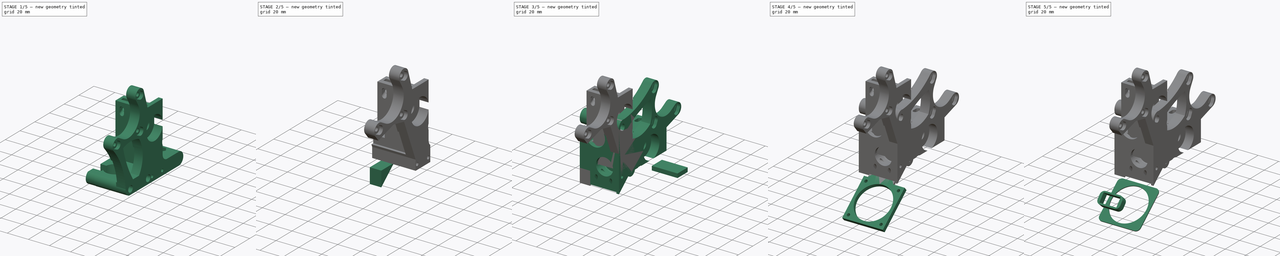
[diagram: build sequence overview — one tinted view per stage of 5, left to right]
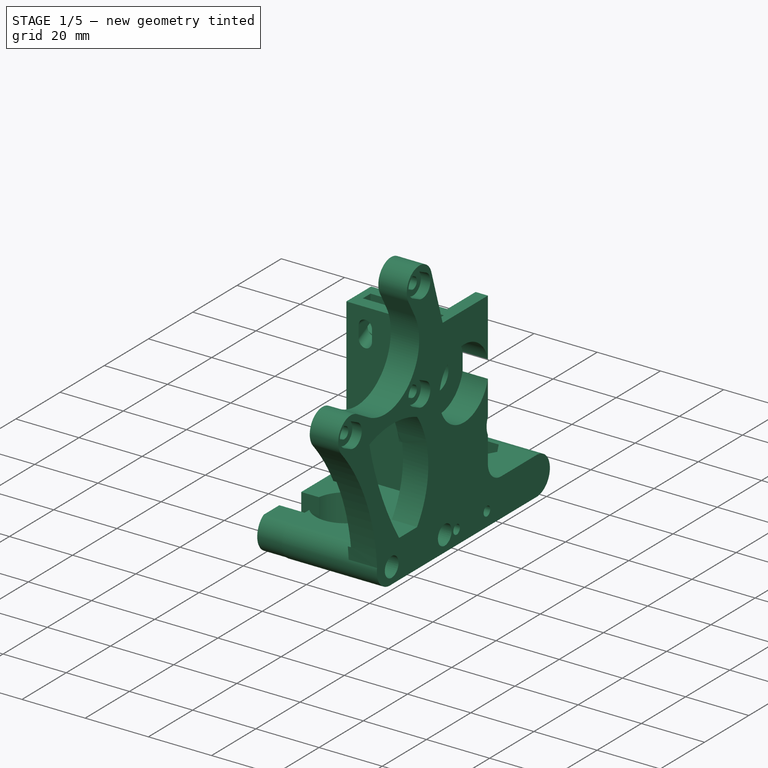
[diagram: stage 1 of 5 — iso view after this stage's code; geometry added in this stage tinted green]
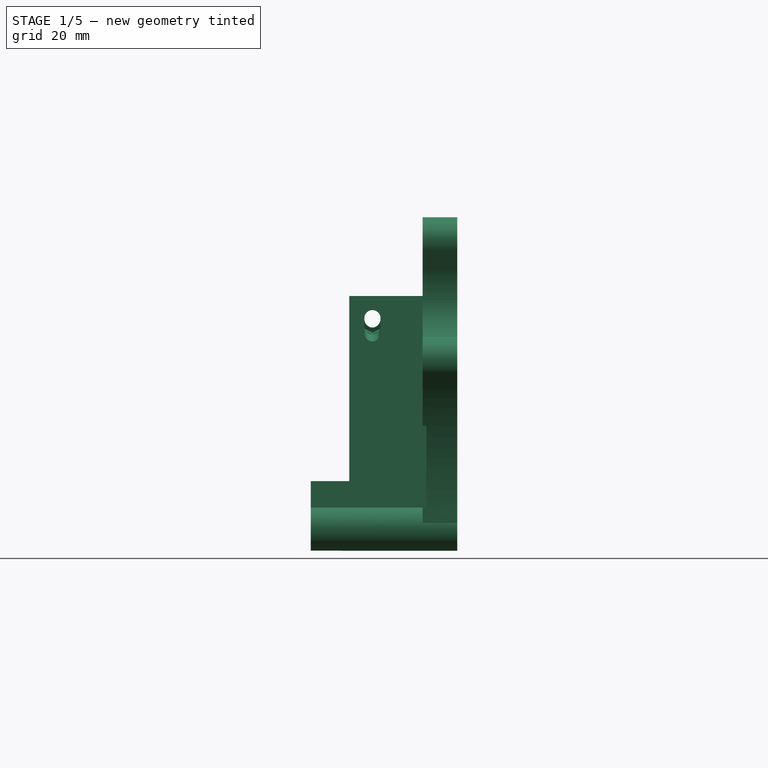
[diagram: stage 1 of 5 — front view after this stage's code; geometry added in this stage tinted green]
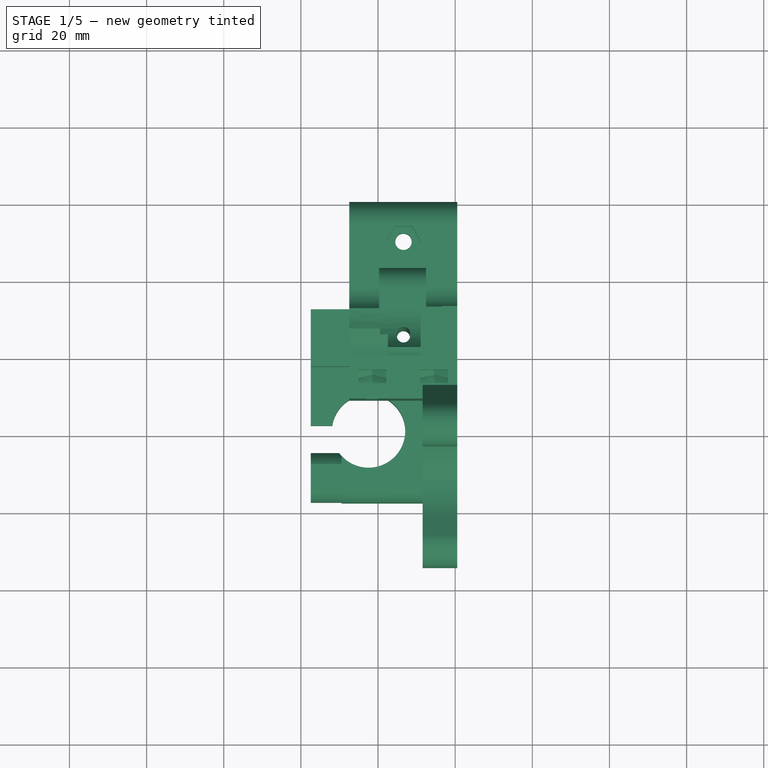
[diagram: stage 1 of 5 — top view after this stage's code; geometry added in this stage tinted green]
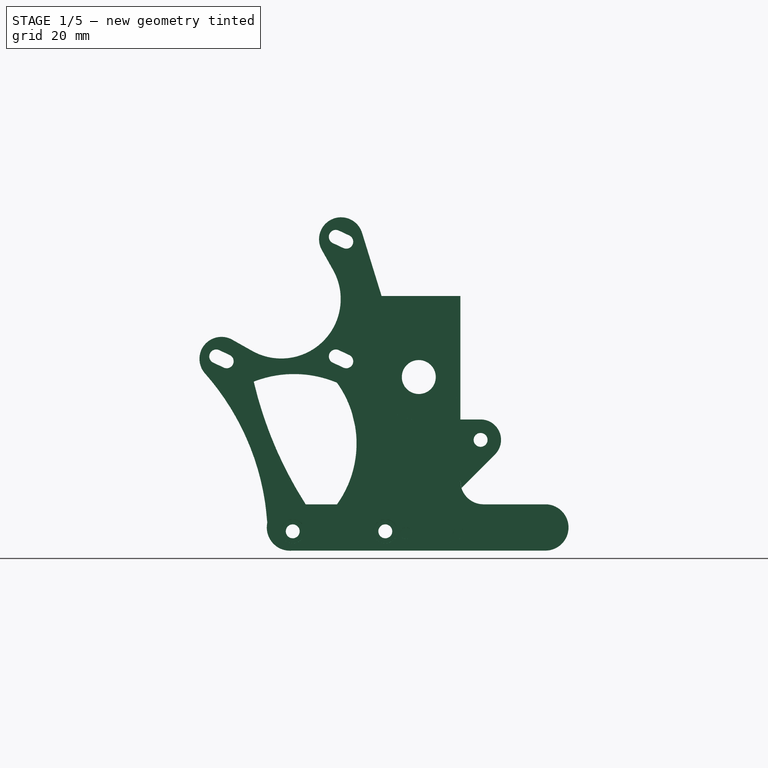
[diagram: stage 1 of 5 — right view after this stage's code; geometry added in this stage tinted green]
FCSTD DOCUMENT  (FreeCAD 0.16R6398 (Git))
Label: wade-autolevel
License: All rights reserved
LicenseURL: http://en.wikipedia.org/wiki/All_rights_reserved
objects: Sketcher::SketchObject×22, PartDesign::Pocket×14, Part::Feature×8, PartDesign::Pad×6, Part::FeaturePython×6, App::DocumentObjectGroup×3, Part::Extrusion×2, Part::MultiFuse×2, Part::Box×2, PartDesign::Fillet×2, Part::Loft×2, PartDesign::Chamfer×1, Part::Compound×1
note: 88 computed .brp shape members not serialized (recipe doc carries the construction recipe); baked Part::Feature solids carry a one-line shape summary decoded from their .brp

FEATURE [Part::Feature] Compound  label="SondaCapacitiva001"
  Placement = pos=(-14.4515,12.7157,12.7724) rot=(0,0,1;0rad)
  shape: bbox 18 x 101 x 18 mm, 13 faces, 5 solids (baked)
FEATURE [Part::Feature] Compound001  label="E3DV007"
  Placement = pos=(13,-14,-2) rot=(-1,0,0;1.5708rad)
  shape: bbox 26.67 x 61.47 x 22.35 mm, 166 faces, 21 solids (baked)
FEATURE [Part::Feature] Compound002  label="Jhead-Mk006"
  Placement = pos=(8.6989,-50.612,-4.3798) rot=(-1,0,0;1.5708rad)
  shape: bbox 24.81 x 55.95 x 19.62 mm, 36 faces, 2 solids (baked)
FEATURE [App::DocumentObjectGroup] Grupo
FEATURE [Part::Feature] Part__Feature  label="Open CASCADE STEP translator 6.7 1"
  shape: bbox 69.53 x 97.45 x 86.95 mm, 2485 faces (baked)
FEATURE [Sketcher::SketchObject] Sketch001
  Placement = pos=(20.5485,0,0) rot=(0.57735,0.57735,0.57735;2.0944rad)
  Support = -> Part__Feature [Face28]
  sketch-geometry (2):
    g0: Circle CenterX=-31.5162 CenterY=-0.439349 CenterZ=0 NormalX=0 NormalY=0 NormalZ=1 Radius=6.01035
    g1: Circle CenterX=-30.8257 CenterY=-1.43756 CenterZ=0 NormalX=0 NormalY=0 NormalZ=1 Radius=3.25903
FEATURE [PartDesign::Pad] Pad
  Length = 30
  Length2 = 100
  Reversed = true
  Sketch = -> Sketch001
  Type = 0
FEATURE [Sketcher::SketchObject] Sketch
  Placement = pos=(-17.4515,0,0) rot=(0.57735,-0.57735,-0.57735;2.0944rad)
  Support = -> Pad [Face424]
  sketch-geometry (4):
    g0: LineSegment StartX=2.16445 StartY=25.9113 StartZ=0 EndX=56.2667 EndY=25.9113 EndZ=0
    g1: LineSegment StartX=56.2667 StartY=25.9113 StartZ=0 EndX=56.2667 EndY=4.71573 EndZ=0
    g2: LineSegment StartX=56.2667 StartY=4.71573 StartZ=0 EndX=2.16445 EndY=4.71573 EndZ=0
    g3: LineSegment StartX=2.16445 StartY=4.71573 StartZ=0 EndX=2.16445 EndY=25.9113 EndZ=0
  constraints (8):
    c: Coincident(g0,g1)
    c: Coincident(g1,g2)
    c: Coincident(g2,g3)
    c: Coincident(g3,g0)
    c: Horizontal(g0)
    c: Horizontal(g2)
    c: Vertical(g1)
    c: Vertical(g3)
FEATURE [PartDesign::Pocket] Pocket
  Length = 30
  Sketch = -> Sketch
  Type = 0
FEATURE [Sketcher::SketchObject] Sketch002
  Placement = pos=(0,0,4.71573) rot=(0,0,1;0rad)
  Support = -> Pocket [Face350]
  sketch-geometry (1):
    g0: Circle CenterX=6.15418 CenterY=-20.3683 CenterZ=0 NormalX=0 NormalY=0 NormalZ=1 Radius=6.10393
FEATURE [PartDesign::Pad] Pad001
  Length = 11.1
  Length2 = 100
  Reversed = true
  Sketch = -> Sketch002
  Type = 0
FEATURE [Sketcher::SketchObject] Sketch003
  ExternalGeometry = -> [Pad001]
  Placement = pos=(0,0,4.71573) rot=(0,0,1;0rad)
  Support = -> Pad001 [Face430]
  sketch-geometry (7):
    g0: LineSegment [constr] StartX=12.5485 StartY=-2.16445 StartZ=0 EndX=-17.4515 EndY=-2.16445 EndZ=0
    g1: LineSegment [constr] StartX=-17.4515 StartY=-2.16445 StartZ=0 EndX=-17.4515 EndY=-34.4003 EndZ=0
    g2: LineSegment [constr] StartX=-17.4515 StartY=-34.4003 StartZ=0 EndX=12.5485 EndY=-34.4003 EndZ=0
    g3: LineSegment [constr] StartX=12.5485 StartY=-34.4003 StartZ=0 EndX=12.5485 EndY=-2.16445 EndZ=0
    g4: LineSegment [constr] StartX=-2.4515 StartY=-18.7724 StartZ=0 EndX=-17.4515 EndY=-18.7724 EndZ=0
    g5: LineSegment [constr] StartX=-2.4515 StartY=-18.7724 StartZ=0 EndX=12.5485 EndY=-18.7724 EndZ=0
    g6: Circle CenterX=-2.4515 CenterY=-18.7724 CenterZ=0 NormalX=0 NormalY=0 NormalZ=1 Radius=9.5
  constraints (18):
    c: Coincident(g0,g1)
    c: Coincident(g1,g2)
    c: Coincident(g2,g3)
    c: Coincident(g3,g0)
    c: Horizontal(g0)
    c: Horizontal(g2)
    c: Vertical(g1)
    c: Vertical(g3)
    c: Coincident(g0,g-3)
    c: Coincident(g1,g-4)
    c: PointOnObject(g4,g1)
    c: Horizontal(g4)
    c: PointOnObject(g5,g-3)
    c: Horizontal(g5)
    c: Equal(g4,g5)
    c: Coincident(g4,g5)
    c: Coincident(g6,g4)
    c: Radius(g6) = 9.5
FEATURE [PartDesign::Pocket] Pocket001
  Length = 5
  Sketch = -> Sketch003
  Type = 1
FEATURE [Sketcher::SketchObject] Sketch021
  Placement = pos=(20.5485,0,0) rot=(0.57735,0.57735,0.57735;2.0944rad)
  Support = -> Pad001 [Face126]
  sketch-geometry (6):
    g0: LineSegment StartX=-3.53989 StartY=-18 StartZ=0 EndX=-3.53989 EndY=2.39728 EndZ=0
    g1: LineSegment StartX=-3.53989 StartY=2.39728 StartZ=0 EndX=-18 EndY=37.9326 EndZ=0
    g2: LineSegment StartX=-18 StartY=37.9326 StartZ=0 EndX=-30.9907 EndY=40.6313 EndZ=0
    g3: LineSegment StartX=-30.9907 StartY=40.6313 StartZ=0 EndX=-54 EndY=34.0573 EndZ=0
    g4: LineSegment StartX=-54 StartY=34.0573 StartZ=0 EndX=-54 EndY=-15.0933 EndZ=0
    g5: LineSegment StartX=-54 StartY=-15.0933 StartZ=0 EndX=-3.53989 EndY=-18 EndZ=0
  constraints (8):
    c: Vertical(g0)
    c: Coincident(g0,g1)
    c: Coincident(g1,g2)
    c: Coincident(g2,g3)
    c: Coincident(g3,g4)
    c: Vertical(g4)
    c: Coincident(g4,g5)
    c: Coincident(g5,g0)
FEATURE [PartDesign::Pocket] Pocket012
  Length = 5
  Sketch = -> Sketch021
  Type = 1
FEATURE [Sketcher::SketchObject] Sketch022
  Placement = pos=(20.5485,0,0) rot=(0.57735,0.57735,0.57735;2.0944rad)
  Support = -> Pocket012 [Face126]
  sketch-geometry (4):
    g0: LineSegment StartX=14.7839 StartY=-9 StartZ=0 EndX=54 EndY=-9 EndZ=0
    g1: LineSegment StartX=54 StartY=-9 StartZ=0 EndX=54 EndY=9 EndZ=0
    g2: LineSegment StartX=54 StartY=9 StartZ=0 EndX=14.7839 EndY=9 EndZ=0
    g3: LineSegment StartX=14.7839 StartY=9 StartZ=0 EndX=14.7839 EndY=-9 EndZ=0
  constraints (8):
    c: Coincident(g0,g1)
    c: Coincident(g1,g2)
    c: Coincident(g2,g3)
    c: Coincident(g3,g0)
    c: Horizontal(g0)
    c: Horizontal(g2)
    c: Vertical(g1)
    c: Vertical(g3)
FEATURE [PartDesign::Pocket] Pocket013
  Length = 5
  Sketch = -> Sketch022
  Type = 1
FEATURE [App::DocumentObjectGroup] Grupo001
  Group = -> [Pad,Pocket,Pad001,Pocket001,Part__Feature,Pocket012,Pocket013]
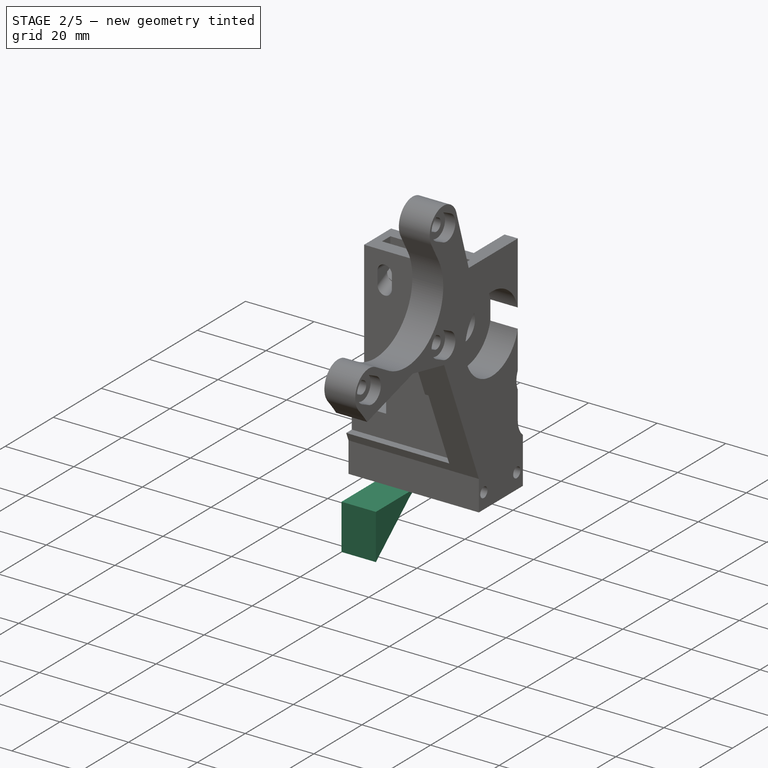
[diagram: stage 2 of 5 — iso view after this stage's code; geometry added in this stage tinted green]
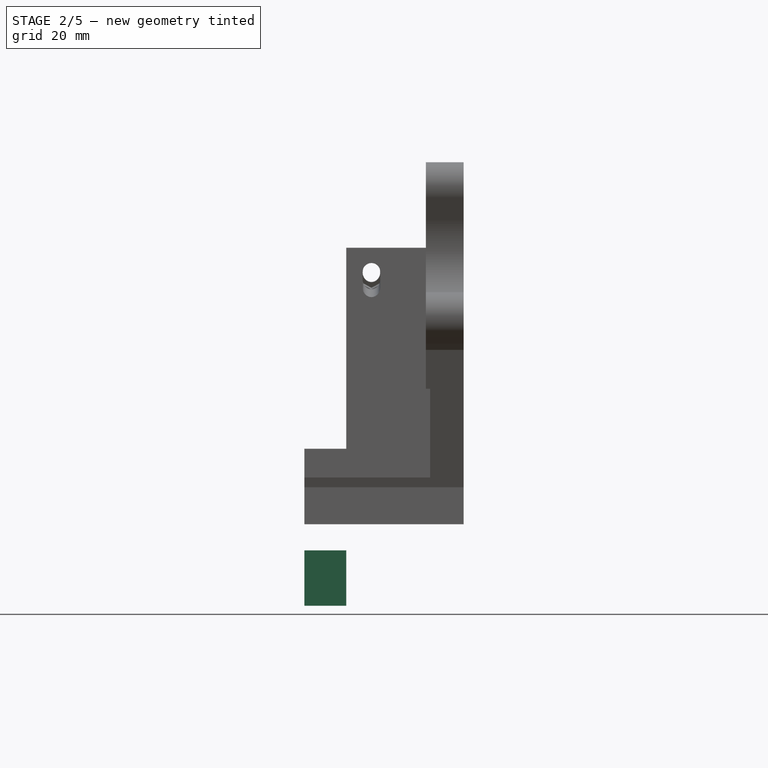
[diagram: stage 2 of 5 — front view after this stage's code; geometry added in this stage tinted green]
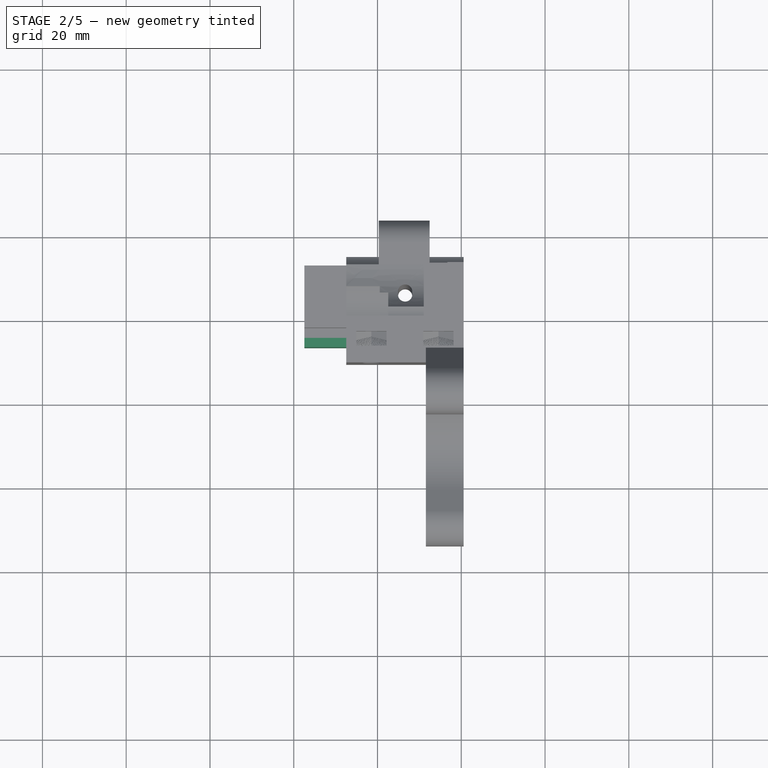
[diagram: stage 2 of 5 — top view after this stage's code; geometry added in this stage tinted green]
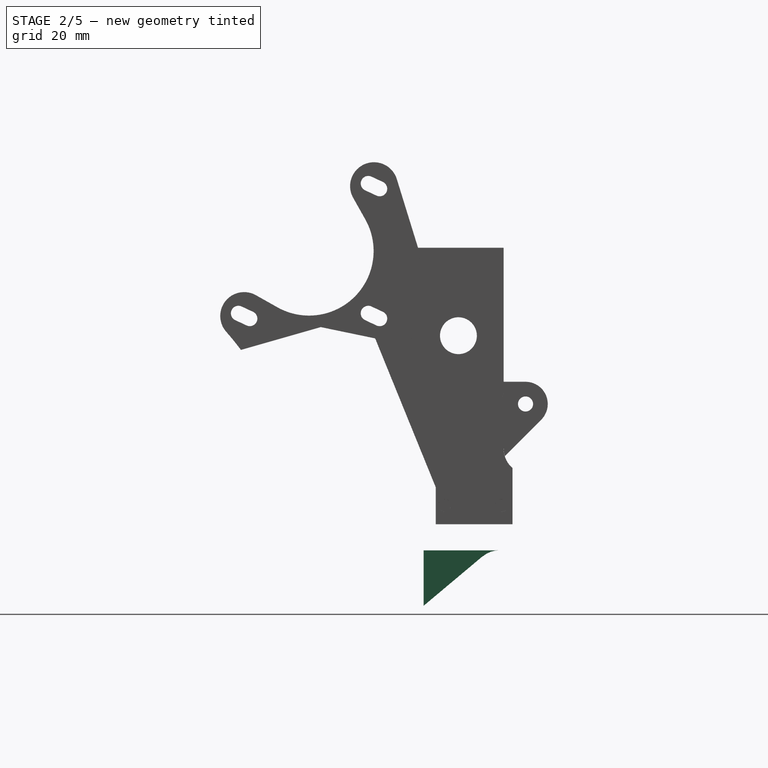
[diagram: stage 2 of 5 — right view after this stage's code; geometry added in this stage tinted green]
FEATURE [Part::FeaturePython] Clone  label="Clone of Pocket001"  # Draft clone (typed FeaturePython)
  Objects = -> [Pocket001]
  Placement = pos=(0,0,0) rot=(-1,0,0;1.5708rad)
  Scale = (1,1,1)
FEATURE [Sketcher::SketchObject] Sketch004
  Placement = pos=(0,3.57569,0) rot=(1,0,0;1.5708rad)
  Support = -> Clone [Face428]
  sketch-geometry (1):
    g0: Circle CenterX=6.60961 CenterY=-5.38482 CenterZ=0 NormalX=0 NormalY=0 NormalZ=1 Radius=2
  constraints (1):
    c: Radius(g0) = 2
FEATURE [PartDesign::Pocket] Pocket002
  Length = 5
  Placement = pos=(0,0,0) rot=(-1,0,0;1.5708rad)
  Sketch = -> Sketch004
  Type = 1
FEATURE [Sketcher::SketchObject] Sketch005
  Placement = pos=(11.0485,0,0) rot=(0,-1,0;1.5708rad)
  Support = -> Pocket002 [Face145]
  sketch-geometry (3):
    g0: LineSegment StartX=-1.74397 StartY=27.2507 StartZ=0 EndX=-12.4988 EndY=38.0055 EndZ=0
    g1: LineSegment StartX=-12.4988 StartY=38.0055 StartZ=0 EndX=-12.4988 EndY=27.2507 EndZ=0
    g2: LineSegment StartX=-12.4988 StartY=27.2507 StartZ=0 EndX=-1.74397 EndY=27.2507 EndZ=0
  constraints (6):
    c: Coincident(g0,g1)
    c: Vertical(g1)
    c: Coincident(g1,g2)
    c: Coincident(g2,g0)
    c: Horizontal(g2)
    c: Angle(g1,g0) = 0.785398
FEATURE [PartDesign::Pad] Pad002
  Length = 10.5
  Length2 = 100
  Placement = pos=(0,0,0) rot=(-1,0,0;1.5708rad)
  Sketch = -> Sketch005
  Type = 0
FEATURE [Sketcher::SketchObject] Sketch006
  ExternalGeometry = -> [Pad002]
  Placement = pos=(0,3.57569,0) rot=(1,0,0;1.5708rad)
  Support = -> Pad002 [Face419]
  sketch-geometry (1):
    g0: Circle CenterX=6.60961 CenterY=-5.38482 CenterZ=0 NormalX=0 NormalY=0 NormalZ=1 Radius=2.2
  constraints (2):
    c: Coincident(g0,g-3)
    c: Radius(g0) = 2.2
FEATURE [PartDesign::Pocket] Pocket003
  Length = 5
  Placement = pos=(0,0,0) rot=(-1,0,0;1.5708rad)
  Sketch = -> Sketch006
  Type = 1
FEATURE [Sketcher::SketchObject] Sketch007
  Placement = pos=(20.5485,0,0) rot=(0,1,0;1.5708rad)
  Support = -> Pocket003 [Face126]
  sketch-geometry (5):
    g0: LineSegment StartX=13.9692 StartY=7.78979 StartZ=0 EndX=36.2501 EndY=-18.7636 EndZ=0
    g1: LineSegment StartX=36.2501 StartY=-18.7636 StartZ=0 EndX=50.9931 EndY=-18.7636 EndZ=0
    g2: LineSegment StartX=50.9931 StartY=-18.7636 StartZ=0 EndX=50.9931 EndY=7.78979 EndZ=0
    g3: LineSegment StartX=50.9931 StartY=7.78979 StartZ=0 EndX=13.9692 EndY=7.78979 EndZ=0
    g4: LineSegment [constr] StartX=13.9692 StartY=7.78979 StartZ=0 EndX=13.9692 EndY=16.7418 EndZ=0
  constraints (10):
    c: Coincident(g0,g1)
    c: Horizontal(g1)
    c: Coincident(g1,g2)
    c: Vertical(g2)
    c: Coincident(g2,g3)
    c: Coincident(g3,g0)
    c: Angle(g0,g3) = 0.872665
    c: Horizontal(g3)
    c: Vertical(g4)
    c: Coincident(g0,g4)
FEATURE [PartDesign::Pocket] Pocket004
  Length = 5
  Placement = pos=(0,0,0) rot=(-1,0,0;1.5708rad)
  Sketch = -> Sketch007
  Type = 1
FEATURE [Part::Extrusion] Extrude_Facebinder001  label="Facebinder_Extrude001"
  Base = -> Facebinder
  Dir = (-10,0,0)
  Solid = true
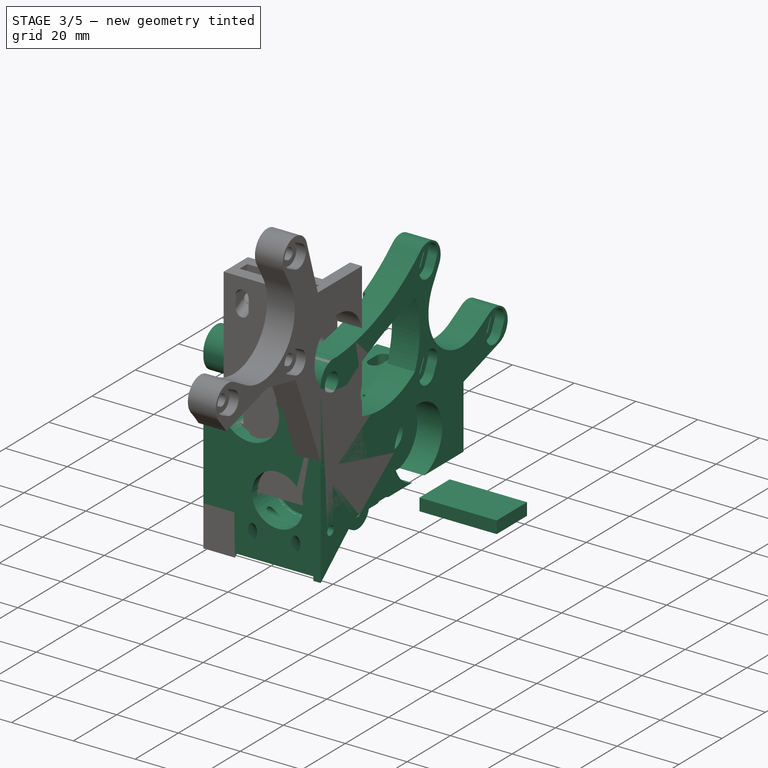
[diagram: stage 3 of 5 — iso view after this stage's code; geometry added in this stage tinted green]
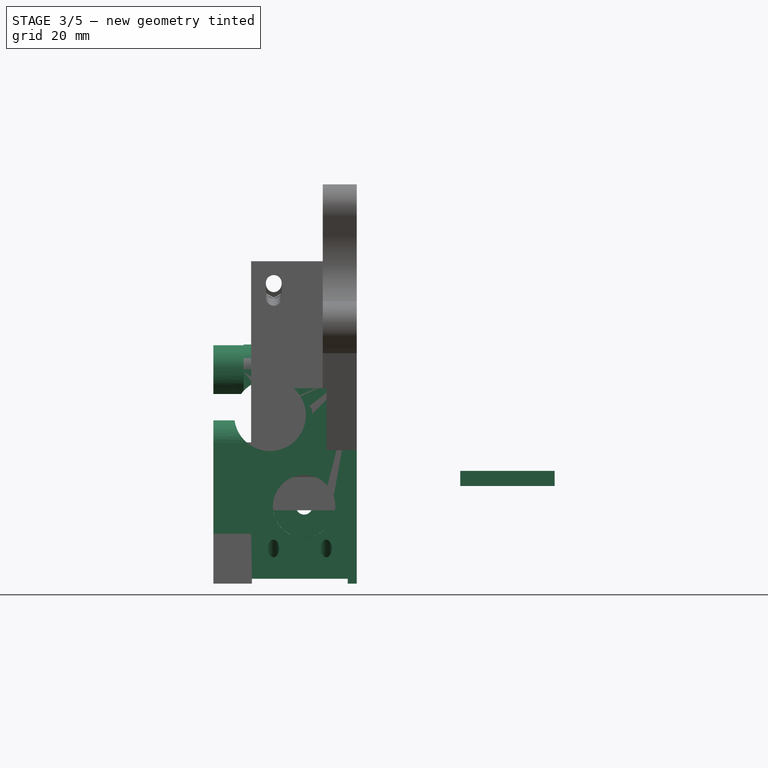
[diagram: stage 3 of 5 — front view after this stage's code; geometry added in this stage tinted green]
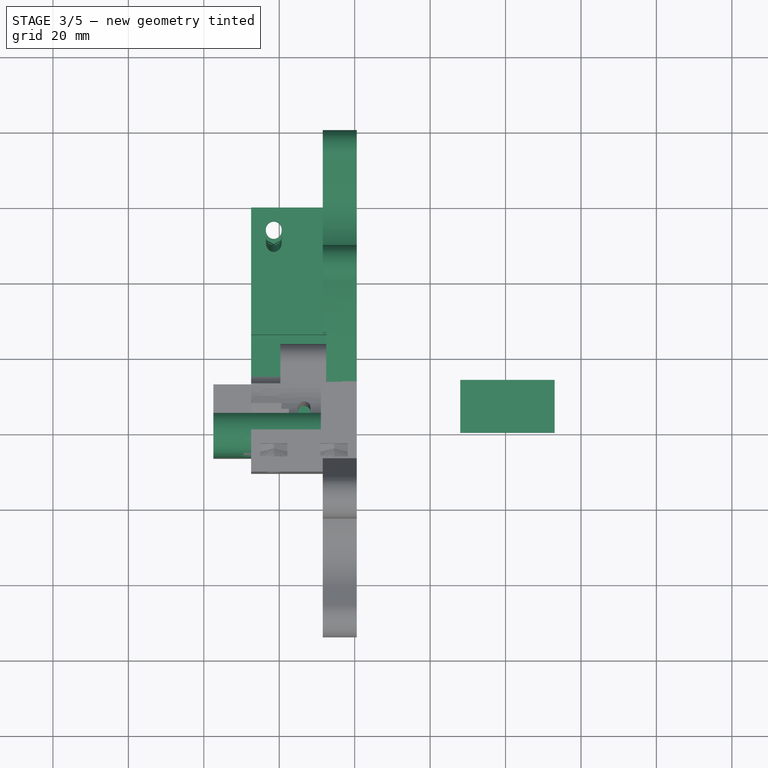
[diagram: stage 3 of 5 — top view after this stage's code; geometry added in this stage tinted green]
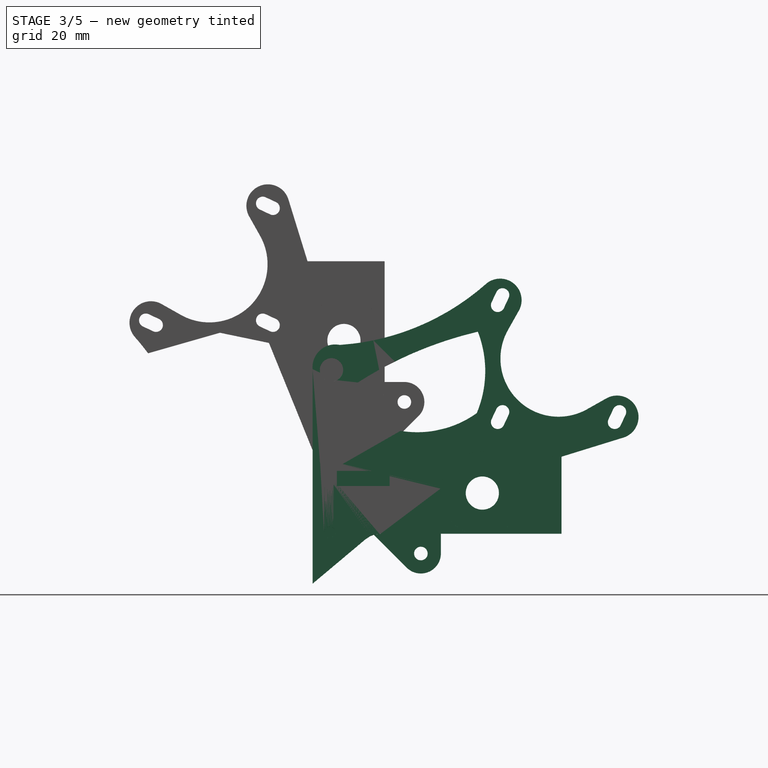
[diagram: stage 3 of 5 — right view after this stage's code; geometry added in this stage tinted green]
FEATURE [Part::Feature] Pad003  label="Ventilador40mm"
  Placement = pos=(-51.0719,-33.2211,-65.3516) rot=(1,0,0;0.698132rad)
  shape: bbox 40 x 37.07 x 33.37 mm, 15 faces (baked)
FEATURE [Part::FeaturePython] Facebinder  # WARN: FeaturePython — macro-defined, semantics opaque (R4)
  Faces = -> [Pocket004]
  Placement = pos=(0,0,0) rot=(-1,0,0;1.5708rad)
FEATURE [Part::Extrusion] Extrude_Facebinder  label="Facebinder_Extrude"
  Base = -> Facebinder
  Dir = (-10,0,0)
  Solid = true
FEATURE [Part::MultiFuse] Fusion
  Shapes = -> [Extrude_Facebinder001,Pocket004]
FEATURE [Sketcher::SketchObject] Sketch008
  ExternalGeometry = -> [Fusion]
  Placement = pos=(0,10.097,-12.0332) rot=(1,0,0;3.83972rad)
  Support = -> Fusion [Face416]
  sketch-geometry (5):
    g0: LineSegment StartX=-7.24644 StartY=21.5672 StartZ=0 EndX=18.1536 EndY=21.5672 EndZ=0
    g1: LineSegment StartX=18.1536 StartY=21.5672 StartZ=0 EndX=18.1536 EndY=9.16724 EndZ=0
    g2: LineSegment StartX=18.1536 StartY=9.16724 StartZ=0 EndX=-7.24644 EndY=9.16724 EndZ=0
    g3: LineSegment StartX=-7.24644 StartY=9.16724 StartZ=0 EndX=-7.24644 EndY=21.5672 EndZ=0
    g4: LineSegment [constr] StartX=20.5485 StartY=21.5672 StartZ=0 EndX=18.1536 EndY=21.5672 EndZ=0
  constraints (13):
    c: Coincident(g0,g1)
    c: Coincident(g1,g2)
    c: Coincident(g2,g3)
    c: Coincident(g3,g0)
    c: Horizontal(g0)
    c: Horizontal(g2)
    c: Vertical(g1)
    c: Vertical(g3)
    c: Coincident(g4,g0)
    c: Coincident(g4,g-3)
    c: Distance(g2) = 25.4
    c: Distance(g1) = 12.4
    c: Horizontal(g4)
FEATURE [PartDesign::Pocket] Pocket005
  Length = 1
  Sketch = -> Sketch008
  Type = 0
FEATURE [Sketcher::SketchObject] Sketch009
  ExternalGeometry = -> [Pocket005]
  Placement = pos=(0,9.45423,-11.2671) rot=(1,0,0;3.83972rad)
  Support = -> Pocket005 [Face382]
  sketch-geometry (5):
    g0: LineSegment [constr] StartX=18.1536 StartY=15.5672 StartZ=0 EndX=12.4536 EndY=15.5672 EndZ=0
    g1: LineSegment [constr] StartX=12.4536 StartY=15.5672 StartZ=0 EndX=-1.54644 EndY=15.5672 EndZ=0
    g2: LineSegment [constr] StartX=-1.54644 StartY=15.5672 StartZ=0 EndX=-7.24644 EndY=15.5672 EndZ=0
    g3: Circle CenterX=-1.54644 CenterY=15.5672 CenterZ=0 NormalX=0 NormalY=0 NormalZ=1 Radius=1.5
    g4: Circle CenterX=12.4536 CenterY=15.5672 CenterZ=0 NormalX=0 NormalY=0 NormalZ=1 Radius=1.5
  constraints (13):
    c: Horizontal(g0)
    c: Coincident(g0,g1)
    c: Horizontal(g1)
    c: Coincident(g1,g2)
    c: Horizontal(g2)
    c: Equal(g2,g0)
    c: Distance(g1) = 14
    c: Coincident(g3,g1)
    c: Coincident(g4,g0)
    c: Radius(g3) = 1.5
    c: Equal(g3,g4)
    c: Equal(g0,g2)
    c: Distance(g2,g0) = 25.4
FEATURE [PartDesign::Pocket] Pocket006
  Length = 8
  Sketch = -> Sketch009
  Type = 0
FEATURE [Part::Box] Box  label="Cubo"
  Height = 4
  Length = 25
  Placement = pos=(48,0,0) rot=(0,0,1;0rad)
  Width = 14
FEATURE [Part::MultiFuse] Fusion001  label="wades-Capacitivo"
  Shapes = -> [Pocket006,Extrude_Facebinder]
FEATURE [Part::FeaturePython] Facebinder003  # WARN: FeaturePython — macro-defined, semantics opaque (R4)
  Faces = -> [Pad006]
FEATURE [Part::Loft] Loft
  Closed = true
  Ruled = true
  Sections = -> [Facebinder003,Facebinder002]
  Solid = false
FEATURE [Part::Feature] Wire001
  Placement = pos=(0,9.45423,-11.2671) rot=(1,0,0;0.698132rad)
  shape: bbox 34.2 x 26.2 x 21.98 mm, 0 faces, 0 solids (baked)
FEATURE [Part::Feature] Wire003
  Placement = pos=(-2,-50,-33) rot=(1,0,0;0.837758rad)
  shape: bbox 16.5 x 6.022 x 6.688 mm, 0 faces, 0 solids (baked)
FEATURE [Part::Loft] Loft001
  Closed = false
  Ruled = false
  Sections = -> [Wire001,Wire003]
  Solid = false
FEATURE [Part::Feature] Shell
  Placement = pos=(0,-0.642788,0.766044) rot=(0,0,1;0rad)
  shape: bbox 40 x 45.86 x 32.06 mm, 26 faces, 0 solids (baked)
FEATURE [Part::Compound] Compound003
  Links = -> [Fillet,Shell]
FEATURE [Sketcher::SketchObject] Sketch020
  ExternalGeometry = -> [Fusion001]
  Placement = pos=(0,3.57569,0) rot=(1,0,0;1.5708rad)
  Support = -> Fusion001 [Face415]
  sketch-geometry (1):
    g0: Circle CenterX=6.60961 CenterY=-5.38482 CenterZ=0 NormalX=0 NormalY=0 NormalZ=1 Radius=8.2833
  constraints (1):
    c: Coincident(g0,g-3)
FEATURE [PartDesign::Pocket] Pocket011
  Length = 1
  Sketch = -> Sketch020
  Type = 0
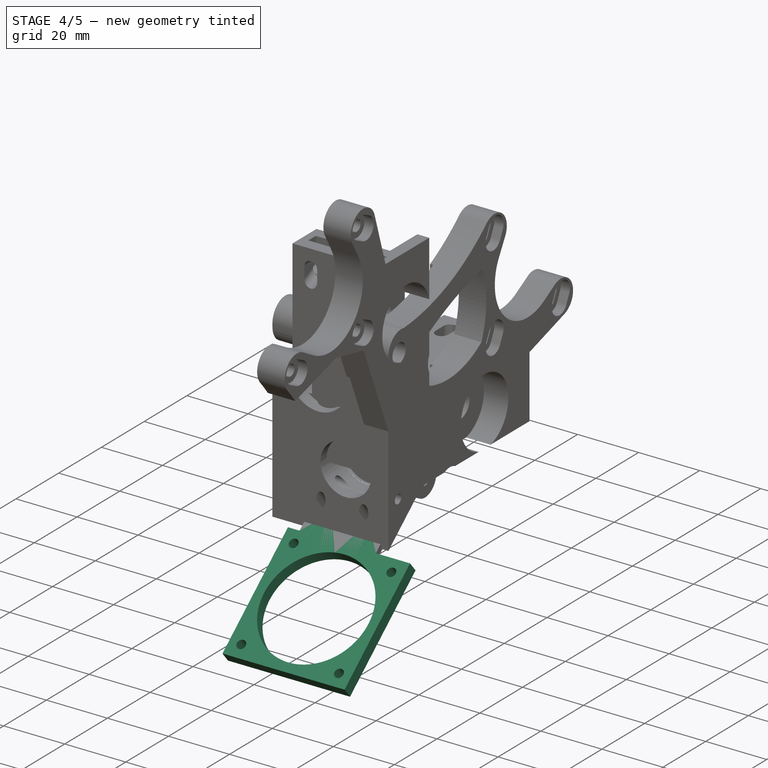
[diagram: stage 4 of 5 — iso view after this stage's code; geometry added in this stage tinted green]
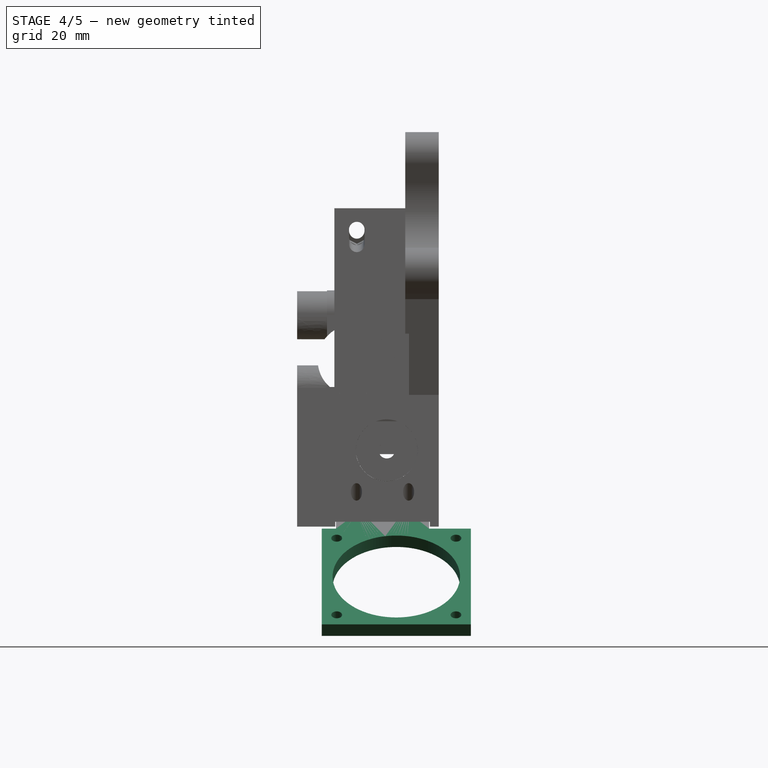
[diagram: stage 4 of 5 — front view after this stage's code; geometry added in this stage tinted green]
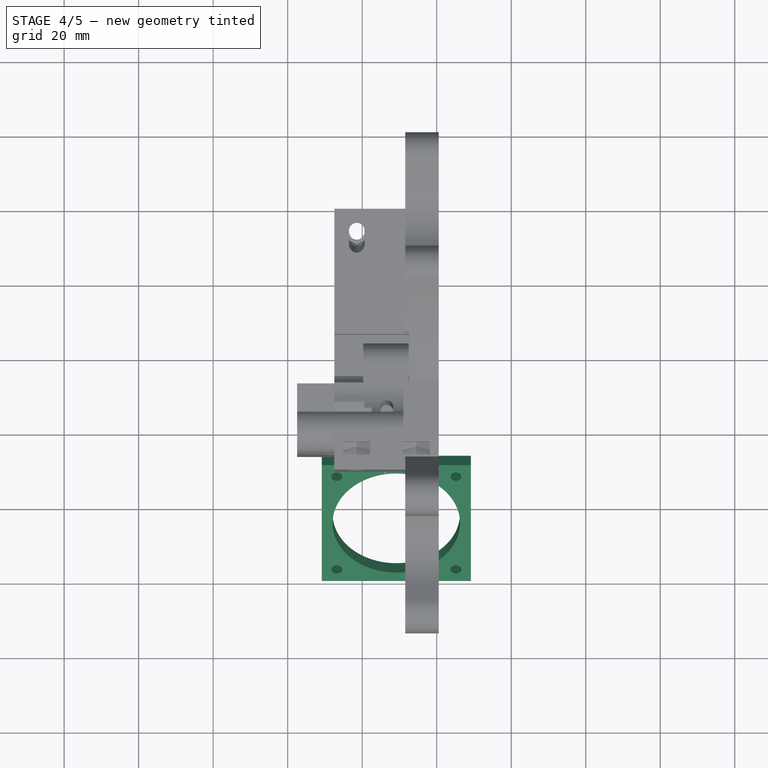
[diagram: stage 4 of 5 — top view after this stage's code; geometry added in this stage tinted green]
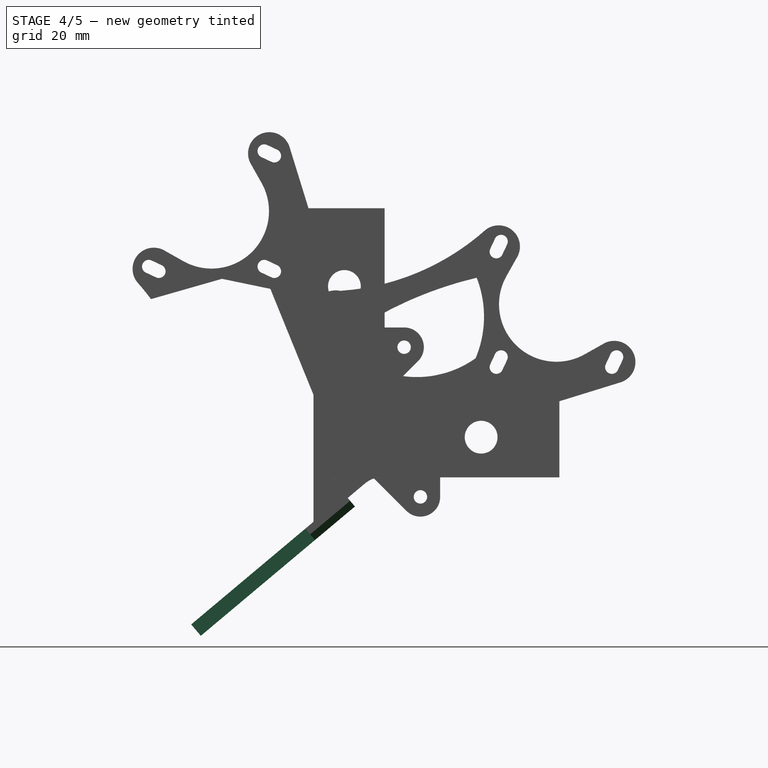
[diagram: stage 4 of 5 — right view after this stage's code; geometry added in this stage tinted green]
FEATURE [Sketcher::SketchObject] Sketch011
  ExternalGeometry = -> [Box]
  Placement = pos=(48,0,0) rot=(1,0,0;3.14159rad)
  Support = -> Box [Face5]
  sketch-geometry (5):
    g0: LineSegment [constr] StartX=0 StartY=-8 StartZ=0 EndX=5.5 EndY=-8 EndZ=0
    g1: LineSegment [constr] StartX=5.5 StartY=-8 StartZ=0 EndX=19.5 EndY=-8 EndZ=0
    g2: LineSegment [constr] StartX=19.5 StartY=-8 StartZ=0 EndX=25 EndY=-8 EndZ=0
    g3: Circle CenterX=5.5 CenterY=-8 CenterZ=0 NormalX=0 NormalY=0 NormalZ=1 Radius=1.65
    g4: Circle CenterX=19.5 CenterY=-8 CenterZ=0 NormalX=0 NormalY=0 NormalZ=1 Radius=1.65
  constraints (14):
    c: PointOnObject(g0,g-4)
    c: Horizontal(g0)
    c: Coincident(g0,g1)
    c: Horizontal(g1)
    c: Coincident(g1,g2)
    c: PointOnObject(g2,g-3)
    c: Horizontal(g2)
    c: Equal(g0,g2)
    c: Distance(g1) = 14
    c: Distance(g2,g-3) = 6
    c: Coincident(g3,g0)
    c: Coincident(g4,g1)
    c: Radius(g4) = 1.65
    c: Equal(g4,g3)
FEATURE [PartDesign::Pocket] Pocket007
  Length = 5
  Placement = pos=(48,0,0) rot=(0,0,1;0rad)
  Sketch = -> Sketch011
  Type = 0
FEATURE [Sketcher::SketchObject] Sketch012
  ExternalGeometry = -> [Pocket007]
  Placement = pos=(48,0,0) rot=(1,0,0;3.14159rad)
  Support = -> Pocket007 [Face5]
  sketch-geometry (2):
    g0: Circle CenterX=19.5 CenterY=-8 CenterZ=0 NormalX=0 NormalY=0 NormalZ=1 Radius=3
    g1: Circle CenterX=5.5 CenterY=-8 CenterZ=0 NormalX=0 NormalY=0 NormalZ=1 Radius=3
  constraints (4):
    c: Coincident(g0,g-3)
    c: Coincident(g1,g-4)
    c: Radius(g0) = 3
    c: Equal(g0,g1)
FEATURE [PartDesign::Pocket] Pocket008
  Length = 2
  Placement = pos=(48,0,0) rot=(0,0,1;0rad)
  Sketch = -> Sketch012
  Type = 0
FEATURE [PartDesign::Chamfer] Chamfer
  Base = -> Pocket008 [Edge4,Edge14]
  Placement = pos=(48,0,0) rot=(0,0,1;0rad)
  Size = 2
FEATURE [Part::FeaturePython] Clone001  label="Clone of Chamfer"  # Draft clone (typed FeaturePython)
  Objects = -> [Chamfer]
  Placement = pos=(-7.04644,-6.02817,-29.48) rot=(1,0,0;0.698132rad)
  Scale = (1,1,1)
FEATURE [Sketcher::SketchObject] Sketch013
  ExternalGeometry = -> [Clone001]
  Placement = pos=(-7.04644,-6.02817,-29.48) rot=(1,0,0;2.26893rad)
  Support = -> Clone001 [Face2]
  sketch-geometry (4):
    g0: LineSegment StartX=-3.79643 StartY=4 StartZ=0 EndX=36.2036 EndY=4 EndZ=0
    g1: LineSegment StartX=36.2036 StartY=4 StartZ=0 EndX=36.2036 EndY=0 EndZ=0
    g2: LineSegment StartX=36.2036 StartY=0 StartZ=0 EndX=-3.79643 EndY=0 EndZ=0
    g3: LineSegment StartX=-3.79643 StartY=0 StartZ=0 EndX=-3.79643 EndY=4 EndZ=0
  constraints (11):
    c: Coincident(g0,g1)
    c: Coincident(g1,g2)
    c: Coincident(g2,g3)
    c: Coincident(g3,g0)
    c: Horizontal(g0)
    c: Horizontal(g2)
    c: Vertical(g1)
    c: Vertical(g3)
    c: PointOnObject(g-4,g0)
    c: Distance(g0) = 40
    c: Distance(g3) = 4
FEATURE [PartDesign::Pad] Pad004
  Length = 40
  Length2 = 100
  Placement = pos=(-7.04644,-6.02817,-29.48) rot=(1,0,0;0.698132rad)
  Sketch = -> Sketch013
  Type = 0
FEATURE [Sketcher::SketchObject] Sketch014
  Placement = pos=(-7.04644,-6.02817,-29.48) rot=(1,0,0;3.83972rad)
  Support = -> Pad004 [Face11]
  sketch-geometry (13):
    g0: LineSegment [constr] StartX=36.2036 StartY=40 StartZ=0 EndX=16.2036 EndY=20 EndZ=0
    g1: LineSegment [constr] StartX=16.2036 StartY=20 StartZ=0 EndX=-3.79643 EndY=0 EndZ=0
    g2: LineSegment [constr] StartX=32.2036 StartY=36 StartZ=0 EndX=0.203573 EndY=36 EndZ=0
    g3: LineSegment [constr] StartX=0.203573 StartY=36 StartZ=0 EndX=0.203573 EndY=4 EndZ=0
    g4: LineSegment [constr] StartX=0.203573 StartY=4 StartZ=0 EndX=32.2036 EndY=4 EndZ=0
    g5: LineSegment [constr] StartX=32.2036 StartY=4 StartZ=0 EndX=32.2036 EndY=36 EndZ=0
    g6: LineSegment [constr] StartX=-3.79643 StartY=40 StartZ=0 EndX=0.203573 EndY=36 EndZ=0
    g7: LineSegment [constr] StartX=32.2036 StartY=4 StartZ=0 EndX=36.2036 EndY=0 EndZ=0
    g8: Circle CenterX=0.203573 CenterY=36 CenterZ=0 NormalX=0 NormalY=0 NormalZ=1 Radius=1.45
    g9: Circle CenterX=32.2036 CenterY=36 CenterZ=0 NormalX=0 NormalY=0 NormalZ=1 Radius=1.45
    g10: Circle CenterX=32.2036 CenterY=4 CenterZ=0 NormalX=0 NormalY=0 NormalZ=1 Radius=1.45
    g11: Circle CenterX=0.203573 CenterY=4 CenterZ=0 NormalX=0 NormalY=0 NormalZ=1 Radius=1.45
    g12: Circle CenterX=16.2036 CenterY=20 CenterZ=0 NormalX=0 NormalY=0 NormalZ=1 Radius=17.1
  constraints (27):
    c: Coincident(g0,g1)
    c: Parallel(g0,g1)
    c: Equal(g0,g1)
    c: Coincident(g2,g3)
    c: Coincident(g3,g4)
    c: Coincident(g4,g5)
    c: Coincident(g5,g2)
    c: Horizontal(g2)
    c: Horizontal(g4)
    c: Vertical(g3)
    c: Vertical(g5)
    c: PointOnObject(g2,g0)
    c: PointOnObject(g3,g1)
    c: Coincident(g6,g2)
    c: Coincident(g7,g4)
    c: Equal(g7,g6)
    c: Parallel(g6,g7)
    c: Distance(g2) = 32
    c: Coincident(g8,g2)
    c: Coincident(g9,g2)
    c: Coincident(g10,g4)
    c: Coincident(g11,g3)
    c: Radius(g11) = 1.45
    c: Equal(g11,g10)
    c: Equal(g11,g9)
    c: Equal(g11,g8)
    c: Coincident(g12,g0)
FEATURE [PartDesign::Pocket] Pocket009
  Length = 5
  Placement = pos=(-7.04644,-6.02817,-29.48) rot=(1,0,0;0.698132rad)
  Sketch = -> Sketch014
  Type = 0
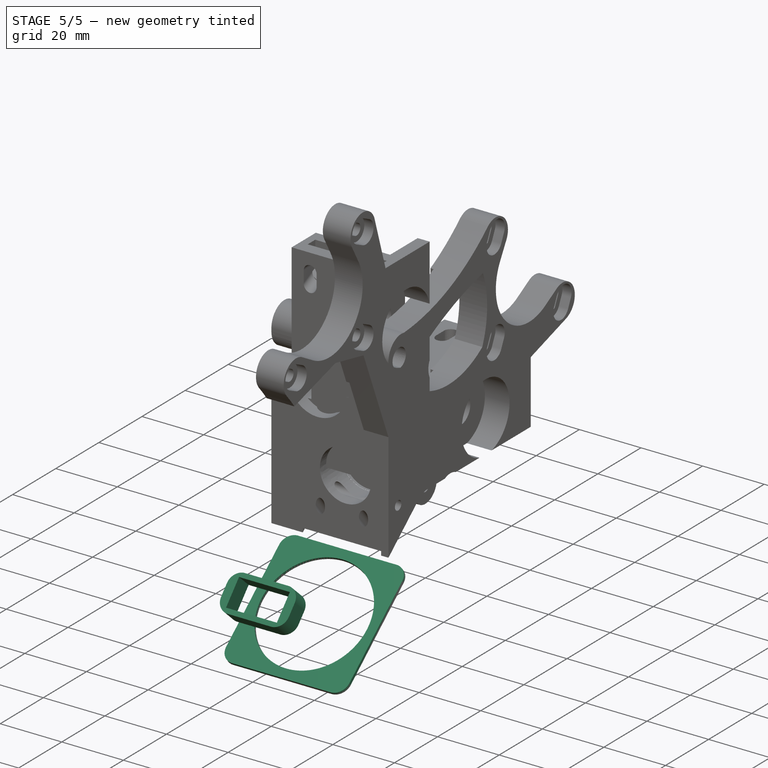
[diagram: stage 5 of 5 — iso view after this stage's code; geometry added in this stage tinted green]
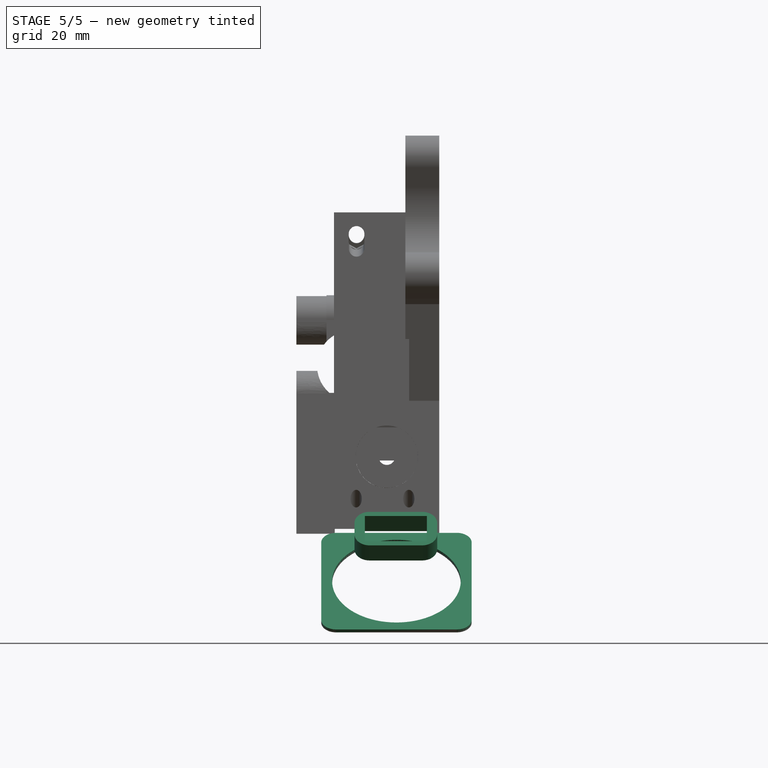
[diagram: stage 5 of 5 — front view after this stage's code; geometry added in this stage tinted green]
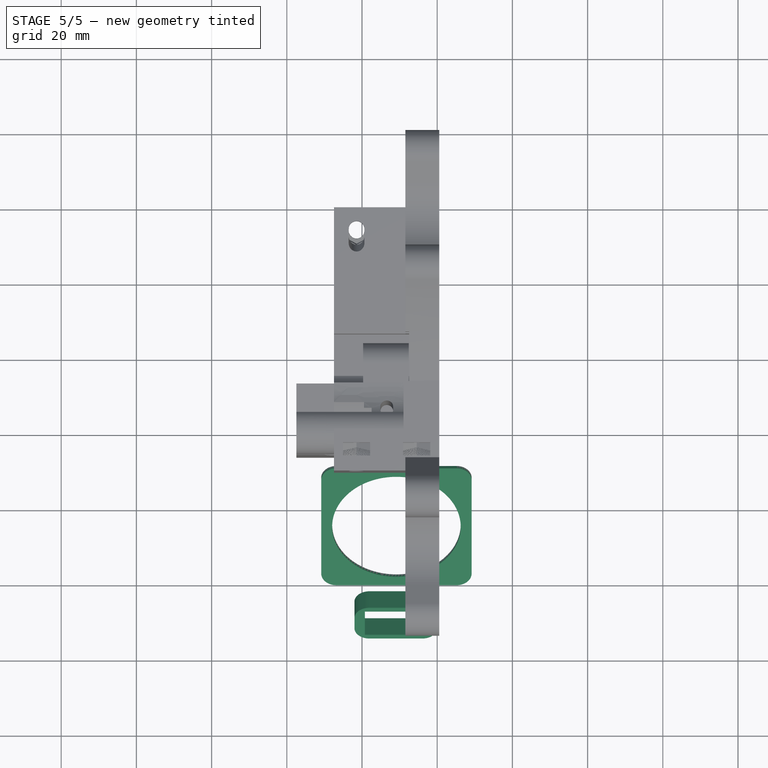
[diagram: stage 5 of 5 — top view after this stage's code; geometry added in this stage tinted green]
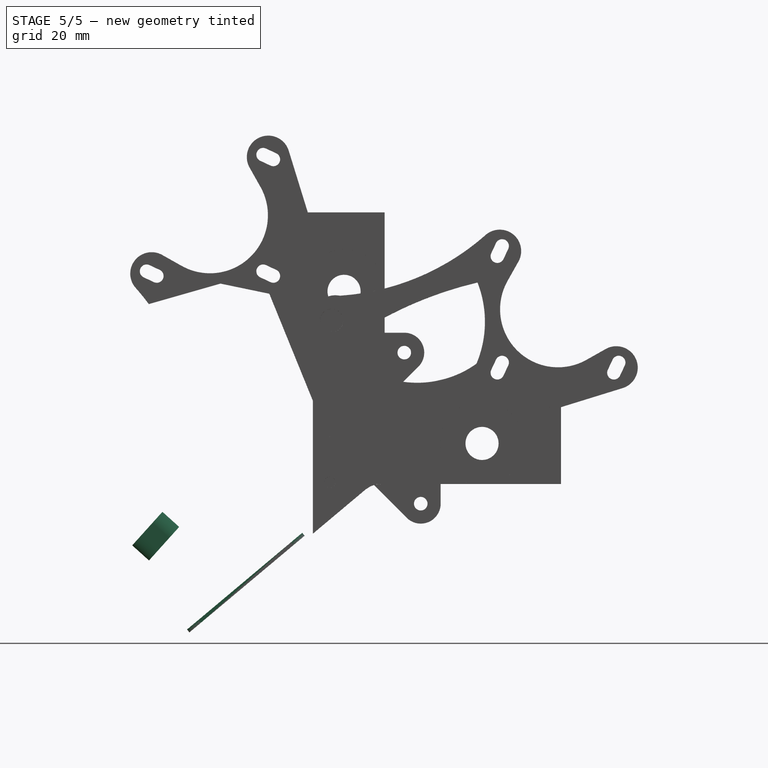
[diagram: stage 5 of 5 — right view after this stage's code; geometry added in this stage tinted green]
FEATURE [Sketcher::SketchObject] Sketch015
  ExternalGeometry = -> [Pocket009]
  Placement = pos=(-7.04644,-8.59932,-26.4159) rot=(1,0,0;0.698132rad)
  Support = -> Pocket009 [Face3]
  sketch-geometry (9):
    g0: LineSegment StartX=-3.79643 StartY=0 StartZ=0 EndX=36.2036 EndY=0 EndZ=0
    g1: LineSegment StartX=36.2036 StartY=0 StartZ=0 EndX=36.2036 EndY=-40 EndZ=0
    g2: LineSegment StartX=36.2036 StartY=-40 StartZ=0 EndX=-3.79643 EndY=-40 EndZ=0
    g3: LineSegment StartX=-3.79643 StartY=-40 StartZ=0 EndX=-3.79643 EndY=0 EndZ=0
    g4: Circle CenterX=0.203573 CenterY=-4 CenterZ=0 NormalX=0 NormalY=0 NormalZ=1 Radius=1.45
    g5: Circle CenterX=32.2036 CenterY=-4 CenterZ=0 NormalX=0 NormalY=0 NormalZ=1 Radius=1.45
    g6: Circle CenterX=32.2036 CenterY=-36 CenterZ=0 NormalX=0 NormalY=0 NormalZ=1 Radius=1.45
    g7: Circle CenterX=0.203573 CenterY=-36 CenterZ=0 NormalX=0 NormalY=0 NormalZ=1 Radius=1.45
    g8: Circle CenterX=16.2036 CenterY=-20 CenterZ=0 NormalX=0 NormalY=0 NormalZ=1 Radius=17.1
  constraints (20):
    c: Coincident(g0,g1)
    c: Coincident(g1,g2)
    c: Coincident(g2,g3)
    c: Coincident(g3,g0)
    c: Horizontal(g0)
    c: Horizontal(g2)
    c: Vertical(g1)
    c: Vertical(g3)
    c: Coincident(g0,g-8)
    c: Coincident(g1,g-9)
    c: Coincident(g4,g-3)
    c: Coincident(g5,g-5)
    c: Coincident(g6,g-7)
    c: Coincident(g7,g-10)
    c: Equal(g7,g6)
    c: Equal(g6,g5)
    c: Equal(g5,g4)
    c: Equal(g4,g-3)
    c: Coincident(g8,g-4)
    c: Equal(g-4,g8)
FEATURE [PartDesign::Pad] Pad005
  Length = 1
  Length2 = 100
  Placement = pos=(-7.04644,-6.02817,-29.48) rot=(1,0,0;0.698132rad)
  Sketch = -> Sketch015
  Type = 0
FEATURE [App::DocumentObjectGroup] Grupo002
  Group = -> [Box,Pocket007,Pocket008,Chamfer,Clone001,Pad004,Pocket009,Pad005]
FEATURE [PartDesign::Fillet] Fillet
  Base = -> Pad005 [Edge56,Edge53,Edge13,Edge10]
  Placement = pos=(-7.04644,-6.02817,-29.48) rot=(1,0,0;0.698132rad)
  Radius = 4
FEATURE [Part::FeaturePython] Facebinder001  # WARN: FeaturePython — macro-defined, semantics opaque (R4)
  Faces = -> [Fillet]
FEATURE [Part::Box] Box001  label="Cubo001"
  Height = 6
  Length = 22
  Placement = pos=(-2,-50,-33) rot=(1,0,0;0.837758rad)
  Width = 12
FEATURE [Sketcher::SketchObject] Sketch016
  ExternalGeometry = -> [Box001]
  Placement = pos=(-2,-54.4589,-28.9852) rot=(1,0,0;0.837758rad)
  Support = -> Box001 [Face6]
  sketch-geometry (7):
    g0: LineSegment [constr] StartX=22 StartY=12 StartZ=0 EndX=19.25 EndY=10.5 EndZ=0
    g1: LineSegment [constr] StartX=19.25 StartY=10.5 StartZ=0 EndX=2.75 EndY=1.5 EndZ=0
    g2: LineSegment [constr] StartX=2.75 StartY=1.5 StartZ=0 EndX=0 EndY=0 EndZ=0
    g3: LineSegment StartX=2.75 StartY=10.5 StartZ=0 EndX=19.25 EndY=10.5 EndZ=0
    g4: LineSegment StartX=19.25 StartY=10.5 StartZ=0 EndX=19.25 EndY=1.5 EndZ=0
    g5: LineSegment StartX=19.25 StartY=1.5 StartZ=0 EndX=2.75 EndY=1.5 EndZ=0
    g6: LineSegment StartX=2.75 StartY=1.5 StartZ=0 EndX=2.75 EndY=10.5 EndZ=0
  constraints (18):
    c: Coincident(g-4,g0)
    c: Coincident(g0,g1)
    c: Coincident(g1,g2)
    c: Coincident(g2,g-1)
    c: Parallel(g2,g1)
    c: Parallel(g1,g0)
    c: Coincident(g3,g4)
    c: Coincident(g4,g5)
    c: Coincident(g5,g6)
    c: Coincident(g6,g3)
    c: Horizontal(g3)
    c: Horizontal(g5)
    c: Vertical(g4)
    c: Vertical(g6)
    c: Coincident(g3,g0)
    c: Coincident(g5,g1)
    c: Equal(g0,g2)
    c: DistanceY(g-1,g4) = 1.5
FEATURE [PartDesign::Pocket] Pocket010
  Length = 10
  Placement = pos=(-2,-50,-33) rot=(1,0,0;0.837758rad)
  Sketch = -> Sketch016
  Type = 0
FEATURE [Sketcher::SketchObject] Sketch017
  ExternalGeometry = -> [Pocket010]
  Placement = pos=(-2,-50,-33) rot=(1,0,0;3.97935rad)
  Support = -> Pocket010 [Face5]
  sketch-geometry (8):
    g0: LineSegment StartX=0 StartY=0 StartZ=0 EndX=22 EndY=0 EndZ=0
    g1: LineSegment StartX=22 StartY=0 StartZ=0 EndX=22 EndY=-12 EndZ=0
    g2: LineSegment StartX=22 StartY=-12 StartZ=0 EndX=0 EndY=-12 EndZ=0
    g3: LineSegment StartX=0 StartY=-12 StartZ=0 EndX=0 EndY=0 EndZ=0
    g4: LineSegment StartX=2.75 StartY=-1.5 StartZ=0 EndX=19.25 EndY=-1.5 EndZ=0
    g5: LineSegment StartX=19.25 StartY=-1.5 StartZ=0 EndX=19.25 EndY=-10.5 EndZ=0
    g6: LineSegment StartX=19.25 StartY=-10.5 StartZ=0 EndX=2.75 EndY=-10.5 EndZ=0
    g7: LineSegment StartX=2.75 StartY=-10.5 StartZ=0 EndX=2.75 EndY=-1.5 EndZ=0
  constraints (20):
    c: Coincident(g0,g1)
    c: Coincident(g1,g2)
    c: Coincident(g2,g3)
    c: Coincident(g3,g0)
    c: Horizontal(g0)
    c: Horizontal(g2)
    c: Vertical(g1)
    c: Vertical(g3)
    c: Coincident(g0,g-1)
    c: Coincident(g1,g-4)
    c: Coincident(g4,g5)
    c: Coincident(g5,g6)
    c: Coincident(g6,g7)
    c: Coincident(g7,g4)
    c: Horizontal(g4)
    c: Horizontal(g6)
    c: Vertical(g5)
    c: Vertical(g7)
    c: Coincident(g4,g-6)
    c: Coincident(g5,g-5)
FEATURE [Sketcher::SketchObject] Sketch018
  ExternalGeometry = -> [Pocket010]
  Placement = pos=(-2,-50,-33) rot=(1,0,0;3.97935rad)
  Support = -> Pocket010 [Face5]
  sketch-geometry (8):
    g0: LineSegment StartX=0 StartY=0 StartZ=0 EndX=22 EndY=0 EndZ=0
    g1: LineSegment StartX=22 StartY=0 StartZ=0 EndX=22 EndY=-12 EndZ=0
    g2: LineSegment StartX=22 StartY=-12 StartZ=0 EndX=0 EndY=-12 EndZ=0
    g3: LineSegment StartX=0 StartY=-12 StartZ=0 EndX=0 EndY=0 EndZ=0
    g4: LineSegment StartX=2.75 StartY=-1.5 StartZ=0 EndX=19.25 EndY=-1.5 EndZ=0
    g5: LineSegment StartX=19.25 StartY=-1.5 StartZ=0 EndX=19.25 EndY=-10.5 EndZ=0
    g6: LineSegment StartX=19.25 StartY=-10.5 StartZ=0 EndX=2.75 EndY=-10.5 EndZ=0
    g7: LineSegment StartX=2.75 StartY=-10.5 StartZ=0 EndX=2.75 EndY=-1.5 EndZ=0
  constraints (20):
    c: Coincident(g0,g1)
    c: Coincident(g1,g2)
    c: Coincident(g2,g3)
    c: Coincident(g3,g0)
    c: Horizontal(g0)
    c: Horizontal(g2)
    c: Vertical(g1)
    c: Vertical(g3)
    c: Coincident(g0,g-1)
    c: Coincident(g1,g-4)
    c: Coincident(g4,g5)
    c: Coincident(g5,g6)
    c: Coincident(g6,g7)
    c: Coincident(g7,g4)
    c: Horizontal(g4)
    c: Horizontal(g6)
    c: Vertical(g5)
    c: Vertical(g7)
    c: Coincident(g4,g-6)
    c: Coincident(g5,g-5)
FEATURE [PartDesign::Fillet] Fillet001
  Base = -> Pocket010 [Edge6,Edge15,Edge3,Edge1]
  Placement = pos=(-2,-50,-33) rot=(1,0,0;0.837758rad)
  Radius = 4
FEATURE [Part::FeaturePython] Facebinder002  # WARN: FeaturePython — macro-defined, semantics opaque (R4)
  Faces = -> [Fillet001]
  Placement = pos=(-2,-50,-33) rot=(1,0,0;0.837758rad)
FEATURE [Sketcher::SketchObject] Sketch019
  ExternalGeometry = -> [Facebinder001]
  Placement = pos=(0,9.45423,-11.2671) rot=(1,0,0;0.698132rad)
  Support = -> Facebinder001 [Face1]
  sketch-geometry (9):
    g0: Circle CenterX=9.15714 CenterY=-43.5672 CenterZ=0 NormalX=0 NormalY=0 NormalZ=1 Radius=17.1
    g1: ArcOfCircle CenterX=-6.84286 CenterY=-27.5672 CenterZ=0 NormalX=0 NormalY=0 NormalZ=1 Radius=4 StartAngle=1.5708 EndAngle=3.14159
    g2: ArcOfCircle CenterX=25.1571 CenterY=-27.5672 CenterZ=0 NormalX=0 NormalY=0 NormalZ=1 Radius=4 StartAngle=0 EndAngle=1.5708
    g3: ArcOfCircle CenterX=25.1571 CenterY=-59.5672 CenterZ=0 NormalX=0 NormalY=0 NormalZ=1 Radius=4 StartAngle=4.71239 EndAngle=6.28319
    g4: ArcOfCircle CenterX=-6.84286 CenterY=-59.5672 CenterZ=0 NormalX=0 NormalY=0 NormalZ=1 Radius=4 StartAngle=3.14159 EndAngle=4.71239
    g5: LineSegment StartX=-10.8429 StartY=-27.5672 StartZ=0 EndX=-10.8429 EndY=-59.5672 EndZ=0
    g6: LineSegment StartX=-6.84286 StartY=-63.5672 StartZ=0 EndX=25.1571 EndY=-63.5672 EndZ=0
    g7: LineSegment StartX=29.1571 StartY=-59.5672 StartZ=0 EndX=29.1571 EndY=-27.5672 EndZ=0
    g8: LineSegment StartX=-6.84286 StartY=-23.5672 StartZ=0 EndX=25.1571 EndY=-23.5672 EndZ=0
  constraints (24):
    c: Coincident(g0,g-7)
    c: Coincident(g1,g-3)
    c: Coincident(g1,g-3)
    c: Coincident(g1,g-3)
    c: Coincident(g2,g-4)
    c: Coincident(g2,g-4)
    c: Coincident(g2,g-4)
    c: Coincident(g4,g-6)
    c: Coincident(g4,g-6)
    c: Coincident(g4,g-6)
    c: Coincident(g5,g1)
    c: Coincident(g5,g4)
    c: Vertical(g5)
    c: Coincident(g6,g4)
    c: Coincident(g6,g-5)
    c: Coincident(g7,g3)
    c: Coincident(g7,g2)
    c: Vertical(g7)
    c: Coincident(g8,g1)
    c: Coincident(g8,g2)
    c: Horizontal(g8)
    c: Equal(g-7,g0)
    c: Coincident(g3,g6)
    c: Coincident(g3,g-5)
FEATURE [PartDesign::Pad] Pad006
  Length = 1
  Length2 = 100
  Sketch = -> Sketch019
  Type = 0
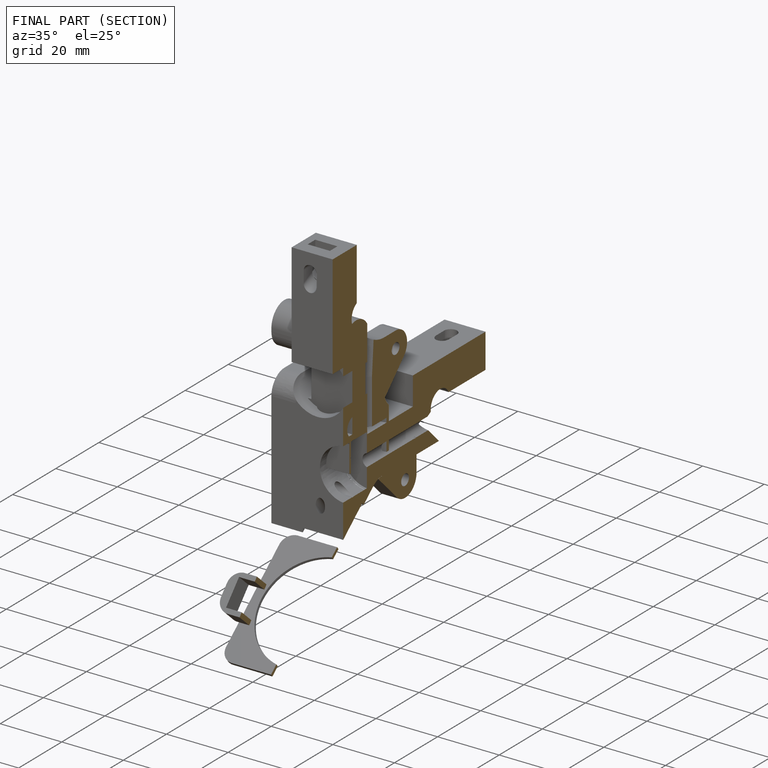
[diagram: finished part — half-section view (interior)]
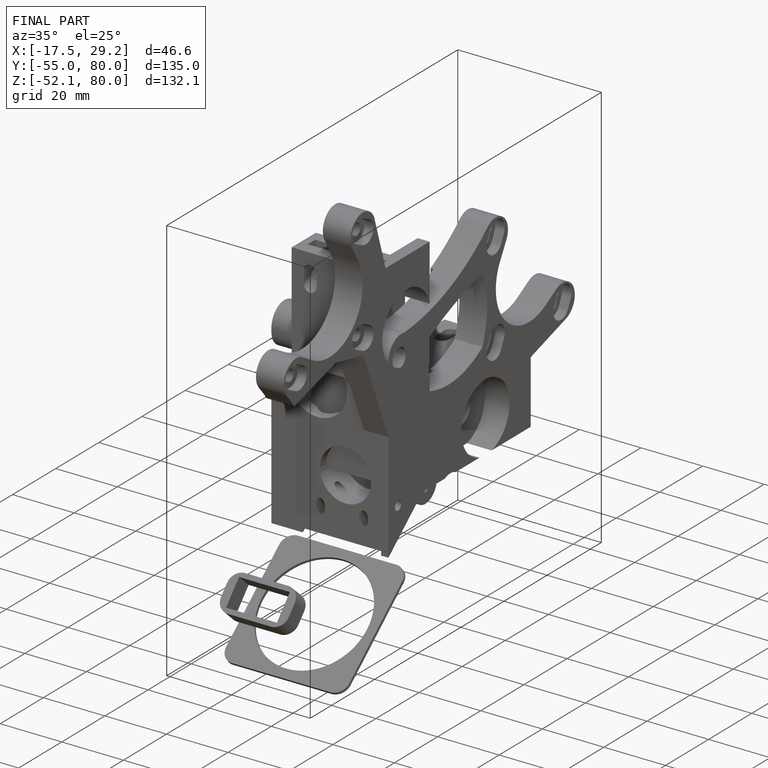
[diagram: finished part — iso view with bounding-box wireframe]
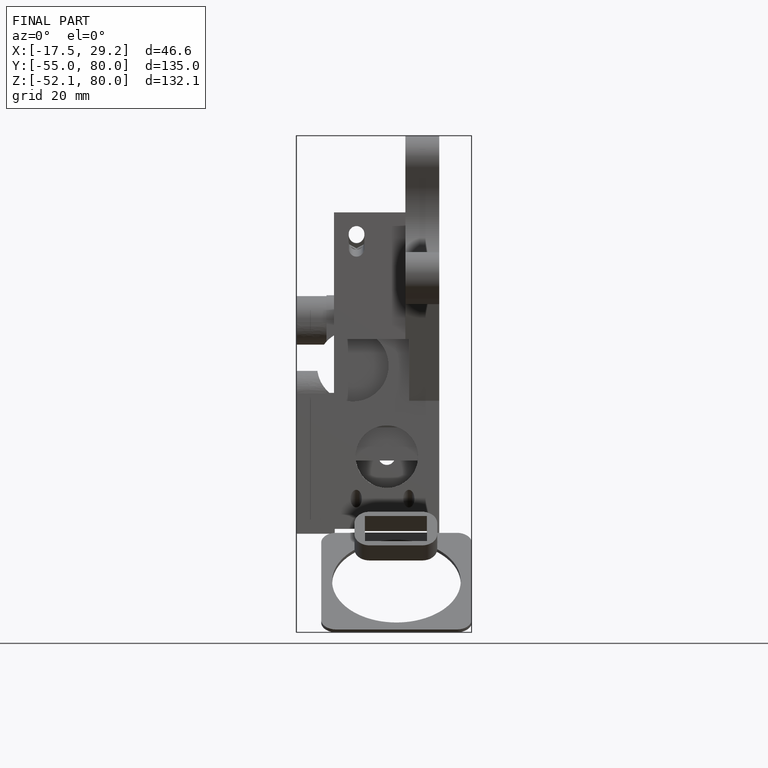
[diagram: finished part — front view with bounding-box wireframe]
